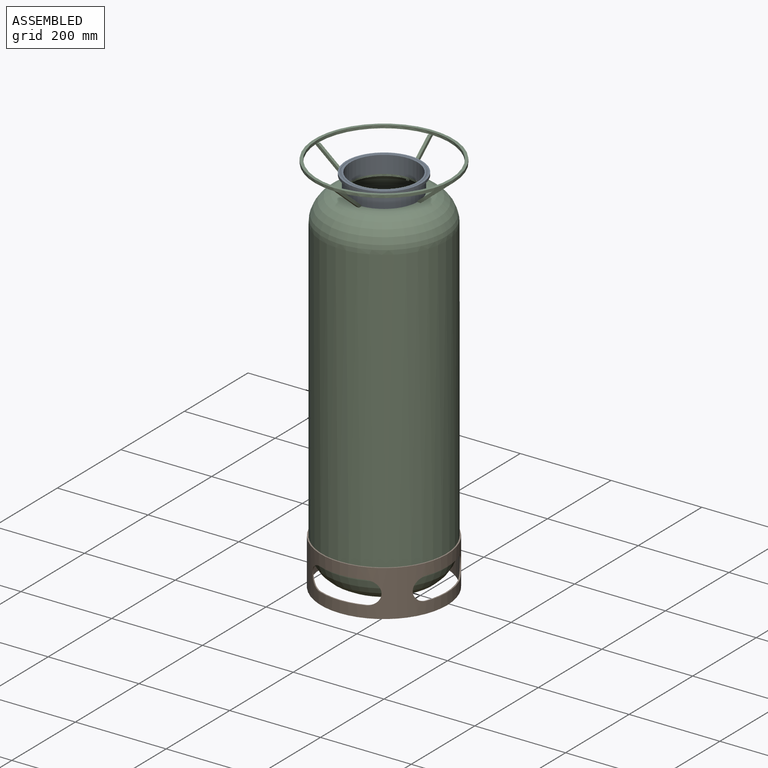
[diagram: assembled view]
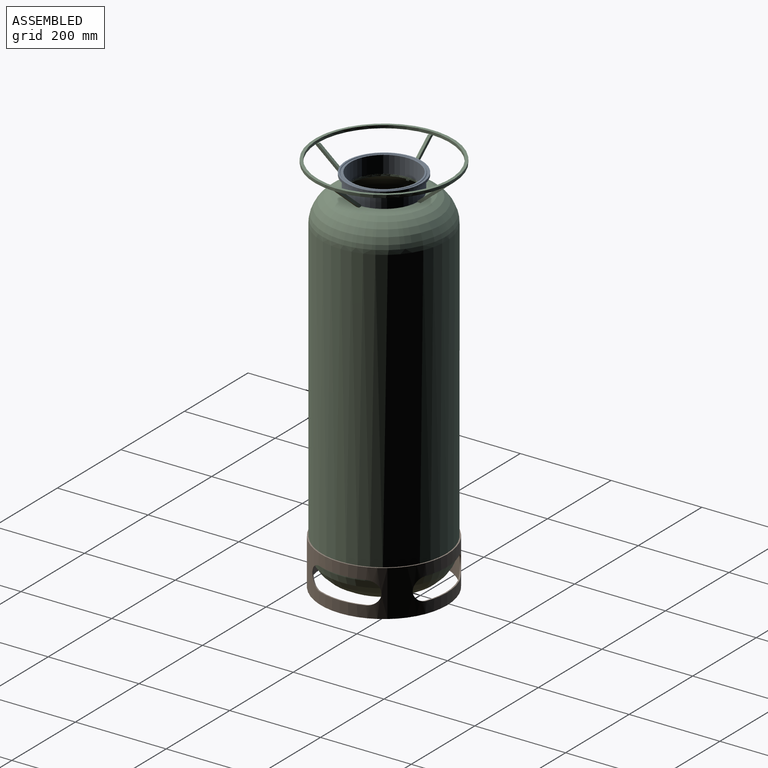
[diagram: assembled view, second angle]
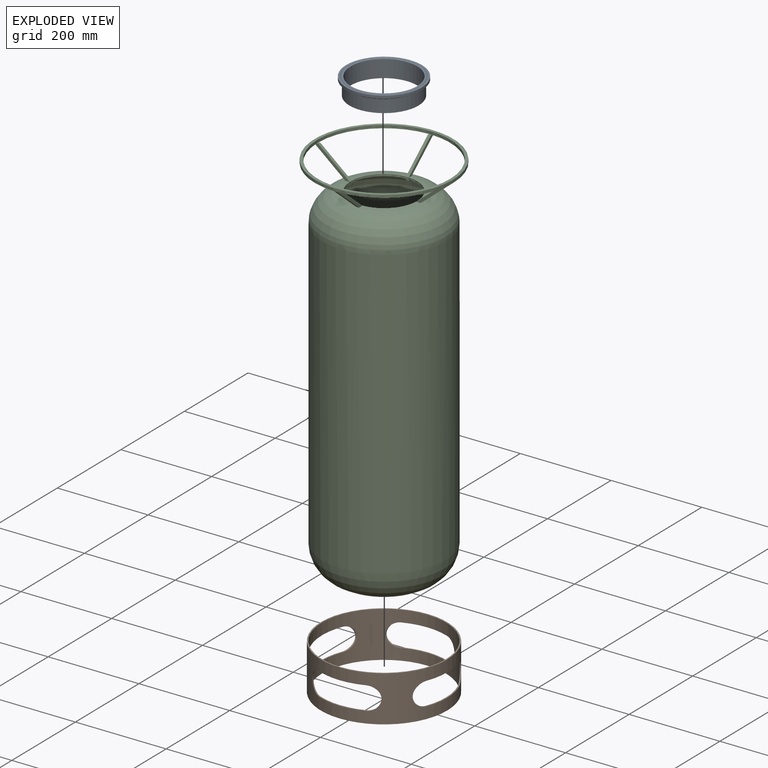
[diagram: exploded view]
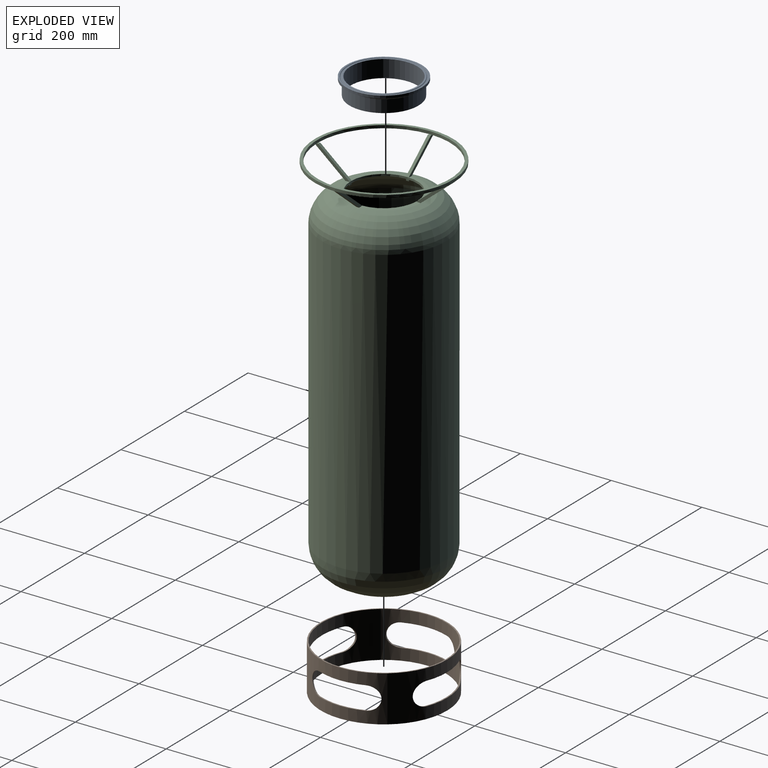
[diagram: exploded view, second angle]
ASSEMBLY  parts=3 mates=2
PART A: 13 faces, bbox 174.1x38.1x174.1 mm
  f0: cylinder r=83.44mm len=166.88mm, axis (0,-1,0), area 2929.6mm2, adj f1,f10
  f1: cone r=78.29mm half-angle=70deg, axis (0,-1,0), area 2784.5mm2, adj f0,f2
  f2: torus R=79.38mm, axis (0,-1,0), area 1875mm2, adj f1,f3
  f3: cylinder r=76.2mm len=152.4mm, axis (0,-1,0), area 13240.2mm2, adj f2,f12
  f4: cylinder r=73.43mm len=146.86mm, axis (0,-1,0), area 17578.7mm2, adj f11,f12
  f5: torus R=76.44mm, axis (0,-1,0), area 444.6mm2, adj f6,f11
  f6: cone r=77.34mm half-angle=23deg, axis (0,1,0), area 207.3mm2, adj f5,f7
  f7: torus R=78.44mm, axis (0,-1,0), area 1376mm2, adj f6,f8
  f8: cone r=79.7mm half-angle=23deg, axis (0,-1,0), area 213.6mm2, adj f7,f9
  f9: torus R=80.43mm, axis (0,-1,0), area 462.9mm2, adj f8,f10
  f10: plane 166.88x166.88mm, normal (0,-1,0), area 1551.2mm2, adj f0,f9
  f11: plane 152.89x152.89mm, normal (0,-1,0), area 1418.8mm2, adj f4,f5
  f12: plane 152.4x152.4mm, normal (0,1,0), area 1301.5mm2, adj f3,f4
PART B: 20 faces, bbox 278.6x278.6x101.6 mm
  f0: cylinder r=136.53mm len=273.05mm, axis (0,0,-1), area 56891mm2, adj f2,f3,f4,f5,f6,f7,f8,f9
  f1: cylinder r=139.29mm len=278.59mm, axis (0,0,-1), area 58727.3mm2, adj f2,f3,f4,f5,f6,f7,f8,f9
  f2: plane 278.59x278.59mm, normal (0,0,1), area 2399mm2, adj f0,f1
  f3: plane 278.59x278.59mm, normal (0,0,-1), area 2399mm2, adj f0,f1
  f4: plane 101.6x12.57mm, normal (0,0,1), area 288.1mm2, adj f0,f1,f5,f7
  f5: cylinder r=25.4mm len=50.8mm, axis (1,0,0), area 253.7mm2, adj f0,f1,f4,f6
  f6: plane 101.6x12.57mm, normal (0,0,-1), area 288.1mm2, adj f0,f1,f5,f7
  f7: cylinder r=25.4mm len=50.8mm, axis (1,0,0), area 253.7mm2, adj f0,f1,f4,f6
  f8: cylinder r=25.4mm len=50.8mm, axis (1,0,0), area 253.7mm2, adj f0,f1,f9,f11
  f9: plane 101.6x12.57mm, normal (0,0,-1), area 288.1mm2, adj f0,f1,f8,f10
  f10: cylinder r=25.4mm len=50.8mm, axis (1,0,0), area 253.7mm2, adj f0,f1,f9,f11
  f11: plane 101.6x12.57mm, normal (0,0,1), area 288.1mm2, adj f0,f1,f8,f10
  f12: plane 101.6x12.57mm, normal (0,0,1), area 288.1mm2, adj f0,f1,f13,f15
  f13: cylinder r=25.4mm len=50.8mm, axis (0,-1,0), area 253.7mm2, adj f0,f1,f12,f14
  f14: plane 101.6x12.57mm, normal (0,0,-1), area 288.1mm2, adj f0,f1,f13,f15
  f15: cylinder r=25.4mm len=50.8mm, axis (0,-1,0), area 253.7mm2, adj f0,f1,f12,f14
  f16: cylinder r=25.4mm len=50.8mm, axis (0,-1,0), area 253.7mm2, adj f0,f1,f17,f19
  f17: plane 101.6x12.57mm, normal (0,0,-1), area 288.1mm2, adj f0,f1,f16,f18
  f18: cylinder r=25.4mm len=50.8mm, axis (0,-1,0), area 253.7mm2, adj f0,f1,f17,f19
  f19: plane 101.6x12.57mm, normal (0,0,1), area 288.1mm2, adj f0,f1,f16,f18
PART C: 68 faces, bbox 304.8x304.8x834.4 mm
  f0: plane 149.19x149.19mm, normal (0,0,-1), area 1448.1mm2, adj f3,f4,f20,f42
  f1: plane 149.19x149.19mm, normal (0,0,-1), area 1448.1mm2, adj f3,f4,f21,f27
  f2: plane 149.19x149.19mm, normal (0,0,-1), area 1448.1mm2, adj f3,f4,f28,f34
  f3: cylinder r=146.05mm len=292.1mm, axis (0,0,1), area 5827.1mm2, adj f0,f1,f2,f5,f6,f7,f9,f11
  f4: cylinder r=152.4mm len=304.8mm, axis (0,0,1), area 6080.5mm2, adj f0,f1,f2,f5,f6,f8,f10,f12
  f5: plane 149.19x149.19mm, normal (0,0,-1), area 1448.1mm2, adj f3,f4,f35,f41
  f6: plane 304.8x304.8mm, normal (0,0,1), area 5953.8mm2, adj f3,f4
  f7: plane 6.35x3.61mm, normal (0,0,1), area 22.8mm2, adj f3,f19,f20,f21
  f8: plane 3.18x0.03mm, normal (0,0,1), area 0mm2, adj f4,f17,f21
  f9: plane 6.35x3.61mm, normal (0,0,1), area 22.8mm2, adj f3,f26,f27,f28
  f10: plane 3.18x0.03mm, normal (0,0,1), area 0mm2, adj f4,f24,f28
  f11: plane 6.35x3.61mm, normal (0,0,1), area 22.8mm2, adj f3,f33,f34,f35
  f12: plane 3.18x0.03mm, normal (0,0,1), area 0mm2, adj f4,f31,f34
  f13: plane 6.35x3.61mm, normal (0,0,1), area 22.8mm2, adj f3,f40,f41,f42
  f14: plane 3.18x0.03mm, normal (0,0,1), area 0mm2, adj f4,f38,f42
  f15: plane 3.21x0.03mm, normal (1,0,-0.04), area 0mm2, adj f19,f20,f49
  f16: plane 3.18x0.03mm, normal (0,0,1), area 0mm2, adj f4,f17,f20
  f17: plane 69.91x57.9mm, normal (-0.64,0,-0.77), area 576.1mm2, adj f8,f16,f20,f21,f49
  f18: plane 3.21x0.03mm, normal (1,0,-0.04), area 0mm2, adj f19,f21,f49
  f19: plane 69.01x57.15mm, normal (0.64,0,0.77), area 569mm2, adj f7,f15,f18,f20,f21
  f20: plane 79.01x57.91mm, normal (0,-1,0), area 571.6mm2, adj f0,f7,f15,f16,f17,f19,f49
  f21: plane 79.01x57.91mm, normal (0,1,0), area 571.6mm2, adj f1,f7,f8,f17,f18,f19,f49
  f22: plane 3.21x0.03mm, normal (0,-1,-0.04), area 0mm2, adj f26,f27,f49
  f23: plane 3.18x0.03mm, normal (0,0,1), area 0mm2, adj f4,f24,f27
  f24: plane 69.88x57.87mm, normal (0,0.64,-0.77), area 576.1mm2, adj f10,f23,f27,f28,f49
  f25: plane 3.21x0.03mm, normal (0,-1,-0.04), area 0mm2, adj f26,f28,f49
  f26: plane 69.01x57.15mm, normal (0,-0.64,0.77), area 569mm2, adj f9,f22,f25,f27,f28
  f27: plane 79.01x57.91mm, normal (-1,0,0), area 571.6mm2, adj f1,f9,f22,f23,f24,f26,f49
  f28: plane 79.01x57.91mm, normal (1,0,0), area 571.6mm2, adj f2,f9,f10,f24,f25,f26,f49
  f29: plane 3.21x0.03mm, normal (-1,0,-0.04), area 0mm2, adj f33,f34,f49
  f30: plane 3.18x0.03mm, normal (0,0,1), area 0mm2, adj f4,f31,f35
  f31: plane 69.88x57.87mm, normal (0.64,0,-0.77), area 576.1mm2, adj f12,f30,f34,f35,f49
  f32: plane 3.21x0.03mm, normal (-1,0,-0.04), area 0mm2, adj f33,f35,f49
  f33: plane 69.01x57.15mm, normal (-0.64,0,0.77), area 569mm2, adj f11,f29,f32,f34,f35
  f34: plane 79.01x57.91mm, normal (0,1,0), area 571.6mm2, adj f2,f11,f12,f29,f31,f33,f49
  f35: plane 79.01x57.91mm, normal (0,-1,0), area 571.6mm2, adj f5,f11,f30,f31,f32,f33,f49
  f36: plane 3.21x0.03mm, normal (0,1,-0.04), area 0mm2, adj f40,f41,f49
  f37: plane 3.18x0.03mm, normal (0,0,1), area 0mm2, adj f4,f38,f41
  f38: plane 69.88x57.87mm, normal (0,-0.64,-0.77), area 576.1mm2, adj f14,f37,f41,f42,f49
  f39: plane 3.21x0.03mm, normal (0,1,-0.04), area 0mm2, adj f40,f42,f49
  f40: plane 69.01x57.15mm, normal (0,0.64,0.77), area 569mm2, adj f13,f36,f39,f41,f42
  f41: plane 79.01x57.91mm, normal (1,0,0), area 571.6mm2, adj f5,f13,f36,f37,f38,f40,f49
  f42: plane 79.01x57.91mm, normal (-1,0,0), area 571.6mm2, adj f0,f13,f14,f38,f39,f40,f49
  f43: plane 128.37x128.37mm, normal (0,0,1), area 12942.8mm2, adj f44
  f44: torus R=64.19mm, axis (0,0,-1), area 72351.3mm2, adj f43,f46
  f45: torus R=72.73mm, axis (0,0,-1), area 64426.1mm2, adj f46,f47,f52,f53,f54,f55,f56,f57
  f46: cylinder r=132.33mm len=635mm, axis (0,0,-1), area 527989.2mm2, adj f44,f45
  f47: cylinder r=73.43mm len=146.86mm, axis (0,0,1), area 1935mm2, adj f45,f49
  f48: cylinder r=136.53mm len=635mm, axis (0,0,-1), area 544710.5mm2, adj f49,f50
  f49: torus R=73.03mm, axis (0,0,-1), area 70682.5mm2, adj f15,f17,f18,f20,f21,f22,f24,f25
  f50: torus R=64.19mm, axis (0,0,-1), area 78705.7mm2, adj f48,f51
  f51: plane 128.37x128.37mm, normal (0,0,-1), area 12942.8mm2, adj f50
  f52: plane 4.45x3.8mm, normal (1,0,0), area 8.5mm2, adj f45,f54,f55
  f53: plane 4.45x3.8mm, normal (-1,0,0), area 8.5mm2, adj f45,f54,f55
  f54: plane 6.35x3.78mm, normal (0,1,-0.04), area 24mm2, adj f45,f52,f53,f55
  f55: plane 6.35x4.29mm, normal (0,-0.64,-0.77), area 35.4mm2, adj f45,f52,f53,f54
  f56: plane 4.45x3.8mm, normal (0,1,0), area 8.5mm2, adj f45,f58,f59
  f57: plane 4.45x3.8mm, normal (0,-1,0), area 8.5mm2, adj f45,f58,f59
  f58: plane 6.35x3.78mm, normal (-1,0,-0.04), area 24mm2, adj f45,f56,f57,f59
  f59: plane 6.35x4.29mm, normal (0.64,0,-0.77), area 35.4mm2, adj f45,f56,f57,f58
  f60: plane 4.45x3.8mm, normal (-1,0,0), area 8.5mm2, adj f45,f62,f63
  f61: plane 4.45x3.8mm, normal (1,0,0), area 8.5mm2, adj f45,f62,f63
  f62: plane 6.35x3.78mm, normal (0,-1,-0.04), area 24mm2, adj f45,f60,f61,f63
  f63: plane 6.35x4.29mm, normal (0,0.64,-0.77), area 35.4mm2, adj f45,f60,f61,f62
  f64: plane 4.45x3.8mm, normal (0,-1,0), area 8.5mm2, adj f45,f66,f67
  f65: plane 4.45x3.8mm, normal (0,1,0), area 8.5mm2, adj f45,f66,f67
  f66: plane 6.38x3.82mm, normal (1,0,-0.04), area 24mm2, adj f45,f64,f65,f67
  f67: plane 6.38x4.32mm, normal (-0.64,0,-0.77), area 35.4mm2, adj f45,f64,f65,f66
PLACE A rot(axis=(-1,0,0),90deg) t=(0,0,808.94)mm
PLACE B t=(0,0,-16.56)mm
PLACE C t=(0,0,72.34)mm
MATE fastened C.f44 <-> A.f0  axis (0,0,-1) through (0,0,770.84)mm
MATE fastened C.f44 <-> B.f0  axis (0,0,-1) through (0,0,72.34)mm
